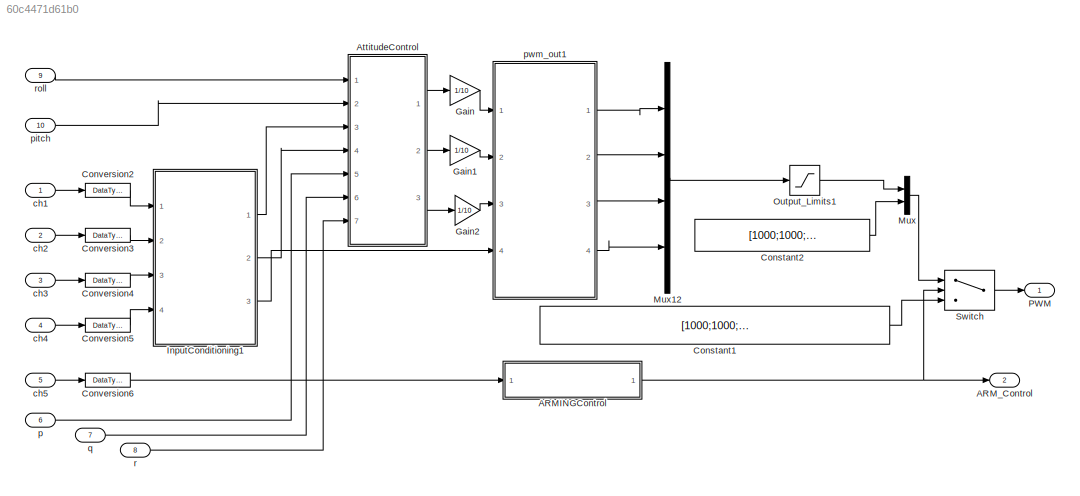
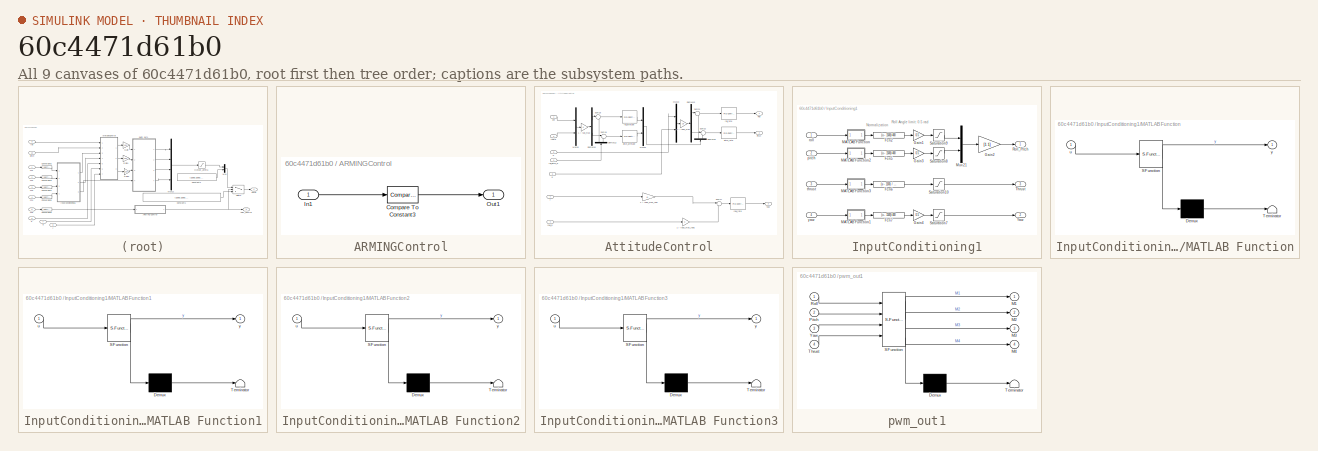
[diagram: thumbnail index - all 9 canvases of the model, root first then tree order]
MODEL slx_60c4471d61b0
KIND model
CONFIG AbsTol = auto
CONFIG EnableMultiTasking = off
CONFIG FixedStep = 0.001
CONFIG InitFcn = Init_control
CONFIG MaxStep = auto
CONFIG MinStep = auto
CONFIG RelTol = 1e-3
CONFIG SampleTimeConstraint = Unconstrained
CONFIG Solver = ode4
CONFIG SolverName = ode4
CONFIG StartTime = 0.0
CONFIG StopTime = 20
BLOCK [SubSystem] ARMINGControl
  Ports = [1, 1]
  RequestExecContextInheritance = off
  Variant = off
BLOCK [Reference] ARMINGControl/Compare To Constant3  REF=simulink/Logic and Bit
Operations/Compare
To Constant
  Ports = [1, 1]
  SourceBlock = simulink/Logic and Bit\nOperations/Compare\nTo Constant
  SourceProductBaseCode = SL
  SourceProductName = Simulink
  SourceType = Compare To Constant
BLOCK [Inport] ARMINGControl/In1
  IconDisplay = Port number
BLOCK [Outport] ARMINGControl/Out1
  IconDisplay = Port number
BLOCK [Outport] ARM_Control
  IconDisplay = Port number
  Port = 2
  PortDimensions = 1
  SamplingMode = Sample based
  SignalType = real
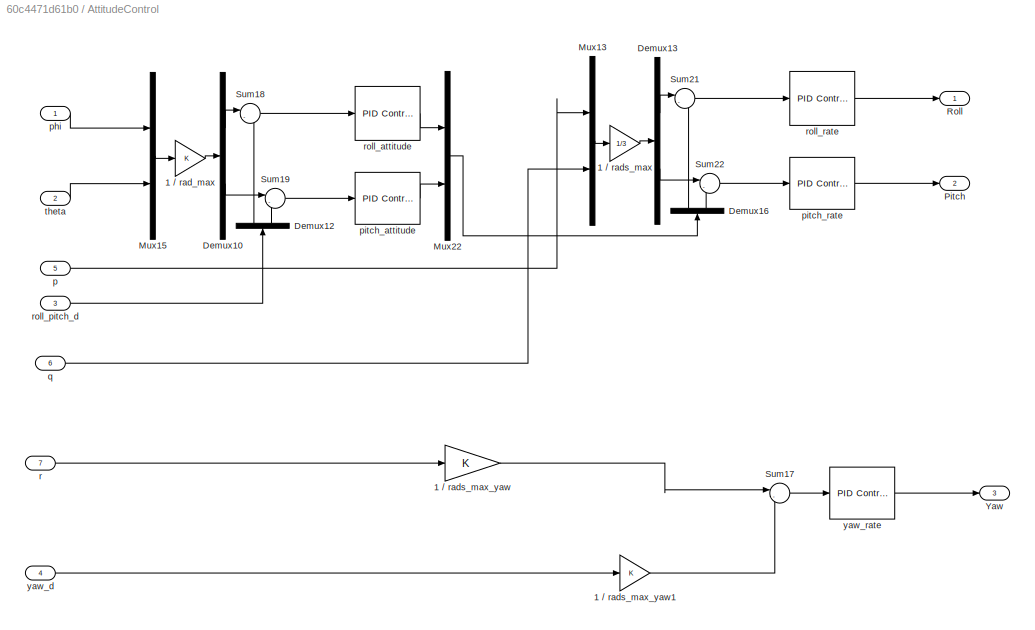
BLOCK [SubSystem] AttitudeControl
  Ports = [7, 3]
  RequestExecContextInheritance = off
  Variant = off
BLOCK [Gain] AttitudeControl/1 // rad_max
  OutDataTypeStr = Inherit: Inherit via internal rule
  ParamDataTypeStr = Inherit: Inherit via internal rule
  SaturateOnIntegerOverflow = off
BLOCK [Gain] AttitudeControl/1 // rads_max
  Gain = 1/3
  OutDataTypeStr = Inherit: Inherit via internal rule
  ParamDataTypeStr = Inherit: Inherit via internal rule
  SaturateOnIntegerOverflow = off
BLOCK [Gain] AttitudeControl/1 // rads_max_yaw
  OutDataTypeStr = Inherit: Inherit via internal rule
  ParamDataTypeStr = Inherit: Inherit via internal rule
  SaturateOnIntegerOverflow = off
BLOCK [Gain] AttitudeControl/1 // rads_max_yaw1
  OutDataTypeStr = Inherit: Inherit via internal rule
  ParamDataTypeStr = Inherit: Inherit via internal rule
  SaturateOnIntegerOverflow = off
BLOCK [Demux] AttitudeControl/Demux10
  DisplayOption = bar
  Outputs = 2
  Ports = [1, 2]
BLOCK [Demux] AttitudeControl/Demux12
  DisplayOption = bar
  Outputs = 2
  Ports = [1, 2]
BLOCK [Demux] AttitudeControl/Demux13
  DisplayOption = bar
  Outputs = 2
  Ports = [1, 2]
BLOCK [Demux] AttitudeControl/Demux16
  DisplayOption = bar
  Outputs = 2
  Ports = [1, 2]
BLOCK [Mux] AttitudeControl/Mux13
  DisplayOption = bar
  Inputs = 2
  Ports = [2, 1]
BLOCK [Mux] AttitudeControl/Mux15
  DisplayOption = bar
  Inputs = 2
  Ports = [2, 1]
BLOCK [Mux] AttitudeControl/Mux22
  DisplayOption = bar
  Inputs = 2
  Ports = [2, 1]
BLOCK [Outport] AttitudeControl/Pitch
  IconDisplay = Port number
  Port = 2
BLOCK [Outport] AttitudeControl/Roll
  IconDisplay = Port number
BLOCK [Sum] AttitudeControl/Sum17
  IconShape = round
  InputSameDT = off
  Inputs = |-+
  OutDataTypeStr = Inherit: Inherit via internal rule
  Ports = [2, 1]
  SaturateOnIntegerOverflow = off
BLOCK [Sum] AttitudeControl/Sum18
  IconShape = round
  InputSameDT = off
  Inputs = |-+
  OutDataTypeStr = Inherit: Inherit via internal rule
  Ports = [2, 1]
  SaturateOnIntegerOverflow = off
BLOCK [Sum] AttitudeControl/Sum19
  IconShape = round
  InputSameDT = off
  Inputs = |-+
  OutDataTypeStr = Inherit: Inherit via internal rule
  Ports = [2, 1]
  SaturateOnIntegerOverflow = off
BLOCK [Sum] AttitudeControl/Sum21
  IconShape = round
  InputSameDT = off
  Inputs = |-+
  OutDataTypeStr = Inherit: Inherit via internal rule
  Ports = [2, 1]
  SaturateOnIntegerOverflow = off
BLOCK [Sum] AttitudeControl/Sum22
  IconShape = round
  InputSameDT = off
  Inputs = |-+
  OutDataTypeStr = Inherit: Inherit via internal rule
  Ports = [2, 1]
  SaturateOnIntegerOverflow = off
BLOCK [Outport] AttitudeControl/Yaw
  IconDisplay = Port number
  Port = 3
BLOCK [Inport] AttitudeControl/p
  IconDisplay = Port number
  Port = 5
BLOCK [Inport] AttitudeControl/phi
  IconDisplay = Port number
BLOCK [Reference] AttitudeControl/pitch_attitude  REF=simulink/Continuous/PID Controller
  Ports = [1, 1]
  SourceBlock = simulink/Continuous/PID Controller
  SourceProductBaseCode = SL
  SourceProductName = Simulink
  SourceType = PID 1dof
BLOCK [Reference] AttitudeControl/pitch_rate  REF=simulink/Continuous/PID Controller
  Ports = [1, 1]
  SourceBlock = simulink/Continuous/PID Controller
  SourceProductBaseCode = SL
  SourceProductName = Simulink
  SourceType = PID 1dof
BLOCK [Inport] AttitudeControl/q
  IconDisplay = Port number
  Port = 6
BLOCK [Inport] AttitudeControl/r
  IconDisplay = Port number
  Port = 7
BLOCK [Reference] AttitudeControl/roll_attitude  REF=simulink/Continuous/PID Controller
  Ports = [1, 1]
  SourceBlock = simulink/Continuous/PID Controller
  SourceProductBaseCode = SL
  SourceProductName = Simulink
  SourceType = PID 1dof
BLOCK [Inport] AttitudeControl/roll_pitch_d
  IconDisplay = Port number
  Port = 3
BLOCK [Reference] AttitudeControl/roll_rate  REF=simulink/Continuous/PID Controller
  Ports = [1, 1]
  SourceBlock = simulink/Continuous/PID Controller
  SourceProductBaseCode = SL
  SourceProductName = Simulink
  SourceType = PID 1dof
BLOCK [Inport] AttitudeControl/theta
  IconDisplay = Port number
  Port = 2
BLOCK [Inport] AttitudeControl/yaw_d
  IconDisplay = Port number
  Port = 4
BLOCK [Reference] AttitudeControl/yaw_rate  REF=simulink/Continuous/PID Controller
  Ports = [1, 1]
  SourceBlock = simulink/Continuous/PID Controller
  SourceProductBaseCode = SL
  SourceProductName = Simulink
  SourceType = PID 1dof
BLOCK [Constant] Constant1
  Value = [1000;1000;1000;1000;1000;1000;1000;1000]
BLOCK [Constant] Constant2
  Value = [1000;1000;1000;1000]
BLOCK [DataTypeConversion] Conversion2
  OutDataTypeStr = double
  RndMeth = Floor
  SaturateOnIntegerOverflow = off
BLOCK [DataTypeConversion] Conversion3
  OutDataTypeStr = double
  RndMeth = Floor
  SaturateOnIntegerOverflow = off
BLOCK [DataTypeConversion] Conversion4
  OutDataTypeStr = double
  RndMeth = Floor
  SaturateOnIntegerOverflow = off
BLOCK [DataTypeConversion] Conversion5
  OutDataTypeStr = double
  RndMeth = Floor
  SaturateOnIntegerOverflow = off
BLOCK [DataTypeConversion] Conversion6
  OutDataTypeStr = double
  RndMeth = Floor
  SaturateOnIntegerOverflow = off
BLOCK [Gain] Gain
  Gain = 1/10
  OutDataTypeStr = Inherit: Inherit via internal rule
  ParamDataTypeStr = Inherit: Inherit via internal rule
  SaturateOnIntegerOverflow = off
BLOCK [Gain] Gain1
  Gain = 1/10
  OutDataTypeStr = Inherit: Inherit via internal rule
  ParamDataTypeStr = Inherit: Inherit via internal rule
  SaturateOnIntegerOverflow = off
BLOCK [Gain] Gain2
  Gain = 1/10
  OutDataTypeStr = Inherit: Inherit via internal rule
  ParamDataTypeStr = Inherit: Inherit via internal rule
  SaturateOnIntegerOverflow = off
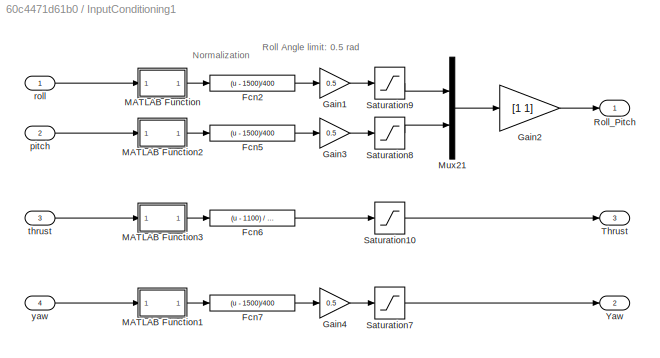
BLOCK [SubSystem] InputConditioning1
  Ports = [4, 3]
  RequestExecContextInheritance = off
  Variant = off
BLOCK [Fcn] InputConditioning1/Fcn2
  Expr = (u - 1500)/400
BLOCK [Fcn] InputConditioning1/Fcn5
  Expr = (u - 1500)/400
BLOCK [Fcn] InputConditioning1/Fcn6
  Expr = (u - 1100) / 800
BLOCK [Fcn] InputConditioning1/Fcn7
  Expr = (u - 1500)/400
BLOCK [Gain] InputConditioning1/Gain1
  Gain = 0.5
  OutDataTypeStr = Inherit: Inherit via internal rule
  ParamDataTypeStr = Inherit: Inherit via internal rule
  SaturateOnIntegerOverflow = off
BLOCK [Gain] InputConditioning1/Gain2
  Gain = [1 1]
  OutDataTypeStr = Inherit: Inherit via back propagation
  ParamDataTypeStr = Inherit: Inherit via internal rule
  SaturateOnIntegerOverflow = off
BLOCK [Gain] InputConditioning1/Gain3
  Gain = 0.5
  OutDataTypeStr = Inherit: Inherit via internal rule
  ParamDataTypeStr = Inherit: Inherit via internal rule
  SaturateOnIntegerOverflow = off
BLOCK [Gain] InputConditioning1/Gain4
  Gain = 0.5
  OutDataTypeStr = Inherit: Inherit via internal rule
  ParamDataTypeStr = Inherit: Inherit via internal rule
  SaturateOnIntegerOverflow = off
BLOCK [SubSystem] InputConditioning1/MATLAB Function
  ErrorFcn = Stateflow.Translate.translate
  PermitHierarchicalResolution = ExplicitOnly
  Ports = [1, 1]
  RequestExecContextInheritance = off
  SFBlockType = MATLAB Function
  TreatAsAtomicUnit = on
  Variant = off
BLOCK [Demux] InputConditioning1/MATLAB Function/ Demux 
  Outputs = 1
  Ports = [1, 1]
BLOCK [S-Function] InputConditioning1/MATLAB Function/ SFunction 
  EnableBusSupport = on
  FunctionName = sf_sfun
  PortCounts = [1 2]
  Ports = [1, 2]
  SFcnIsStateOwnerBlock = off
  SFunctionDeploymentMode = off
  Tag = Stateflow S-Function Exp1_AttitudeController 2
BLOCK [Terminator] InputConditioning1/MATLAB Function/ Terminator 
BLOCK [Inport] InputConditioning1/MATLAB Function/u
  IconDisplay = Port number
BLOCK [Outport] InputConditioning1/MATLAB Function/y
  IconDisplay = Port number
BLOCK [SubSystem] InputConditioning1/MATLAB Function1
  ErrorFcn = Stateflow.Translate.translate
  PermitHierarchicalResolution = ExplicitOnly
  Ports = [1, 1]
  RequestExecContextInheritance = off
  SFBlockType = MATLAB Function
  TreatAsAtomicUnit = on
  Variant = off
BLOCK [Demux] InputConditioning1/MATLAB Function1/ Demux 
  Outputs = 1
  Ports = [1, 1]
BLOCK [S-Function] InputConditioning1/MATLAB Function1/ SFunction 
  EnableBusSupport = on
  FunctionName = sf_sfun
  PortCounts = [1 2]
  Ports = [1, 2]
  SFcnIsStateOwnerBlock = off
  SFunctionDeploymentMode = off
  Tag = Stateflow S-Function Exp1_AttitudeController 3
BLOCK [Terminator] InputConditioning1/MATLAB Function1/ Terminator 
BLOCK [Inport] InputConditioning1/MATLAB Function1/u
  IconDisplay = Port number
BLOCK [Outport] InputConditioning1/MATLAB Function1/y
  IconDisplay = Port number
BLOCK [SubSystem] InputConditioning1/MATLAB Function2
  ErrorFcn = Stateflow.Translate.translate
  PermitHierarchicalResolution = ExplicitOnly
  Ports = [1, 1]
  RequestExecContextInheritance = off
  SFBlockType = MATLAB Function
  TreatAsAtomicUnit = on
  Variant = off
BLOCK [Demux] InputConditioning1/MATLAB Function2/ Demux 
  Outputs = 1
  Ports = [1, 1]
BLOCK [S-Function] InputConditioning1/MATLAB Function2/ SFunction 
  EnableBusSupport = on
  FunctionName = sf_sfun
  PortCounts = [1 2]
  Ports = [1, 2]
  SFcnIsStateOwnerBlock = off
  SFunctionDeploymentMode = off
  Tag = Stateflow S-Function Exp1_AttitudeController 5
BLOCK [Terminator] InputConditioning1/MATLAB Function2/ Terminator 
BLOCK [Inport] InputConditioning1/MATLAB Function2/u
  IconDisplay = Port number
BLOCK [Outport] InputConditioning1/MATLAB Function2/y
  IconDisplay = Port number
BLOCK [SubSystem] InputConditioning1/MATLAB Function3
  ErrorFcn = Stateflow.Translate.translate
  PermitHierarchicalResolution = ExplicitOnly
  Ports = [1, 1]
  RequestExecContextInheritance = off
  SFBlockType = MATLAB Function
  TreatAsAtomicUnit = on
  Variant = off
BLOCK [Demux] InputConditioning1/MATLAB Function3/ Demux 
  Outputs = 1
  Ports = [1, 1]
BLOCK [S-Function] InputConditioning1/MATLAB Function3/ SFunction 
  EnableBusSupport = on
  FunctionName = sf_sfun
  PortCounts = [1 2]
  Ports = [1, 2]
  SFcnIsStateOwnerBlock = off
  SFunctionDeploymentMode = off
  Tag = Stateflow S-Function Exp1_AttitudeController 7
BLOCK [Terminator] InputConditioning1/MATLAB Function3/ Terminator 
BLOCK [Inport] InputConditioning1/MATLAB Function3/u
  IconDisplay = Port number
BLOCK [Outport] InputConditioning1/MATLAB Function3/y
  IconDisplay = Port number
BLOCK [Mux] InputConditioning1/Mux21
  DisplayOption = bar
  Inputs = 2
  Ports = [2, 1]
BLOCK [Outport] InputConditioning1/Roll_Pitch
  IconDisplay = Port number
BLOCK [Saturate] InputConditioning1/Saturation10
  InputPortMap = u0
  LowerLimit = 0
  Ports = [1, 1]
  UpperLimit = 1
BLOCK [Saturate] InputConditioning1/Saturation7
  InputPortMap = u0
  LowerLimit = -1
  Ports = [1, 1]
  UpperLimit = 1
BLOCK [Saturate] InputConditioning1/Saturation8
  InputPortMap = u0
  LowerLimit = -1
  Ports = [1, 1]
  UpperLimit = 1
BLOCK [Saturate] InputConditioning1/Saturation9
  InputPortMap = u0
  LowerLimit = -1
  Ports = [1, 1]
  UpperLimit = 1
BLOCK [Outport] InputConditioning1/Thrust
  IconDisplay = Port number
  Port = 3
BLOCK [Outport] InputConditioning1/Yaw
  IconDisplay = Port number
  Port = 2
BLOCK [Inport] InputConditioning1/pitch
  IconDisplay = Port number
  Port = 2
BLOCK [Inport] InputConditioning1/roll
  IconDisplay = Port number
BLOCK [Inport] InputConditioning1/thrust
  IconDisplay = Port number
  Port = 3
BLOCK [Inport] InputConditioning1/yaw
  IconDisplay = Port number
  Port = 4
BLOCK [Mux] Mux
  DisplayOption = bar
  Inputs = 2
  Ports = [2, 1]
BLOCK [Mux] Mux12
  DisplayOption = bar
  Ports = [4, 1]
BLOCK [Saturate] Output_Limits1
  InputPortMap = u0
  LowerLimit = 1000
  Ports = [1, 1]
  UpperLimit = 2000
BLOCK [Outport] PWM
  IconDisplay = Port number
  PortDimensions = 8
  SamplingMode = Sample based
  SignalType = real
BLOCK [Switch] Switch
  Criteria = u2 > Threshold
  InputSameDT = off
  SaturateOnIntegerOverflow = off
  Threshold = 0.5
BLOCK [Inport] ch1
  IconDisplay = Port number
  PortDimensions = 1
  SamplingMode = Sample based
  SignalType = real
BLOCK [Inport] ch2
  IconDisplay = Port number
  Port = 2
  PortDimensions = 1
  SamplingMode = Sample based
  SignalType = real
BLOCK [Inport] ch3
  IconDisplay = Port number
  Port = 3
  PortDimensions = 1
  SamplingMode = Sample based
  SignalType = real
BLOCK [Inport] ch4
  IconDisplay = Port number
  Port = 4
  PortDimensions = 1
  SamplingMode = Sample based
  SignalType = real
BLOCK [Inport] ch5
  IconDisplay = Port number
  Interpolate = off
  Port = 5
  PortDimensions = 1
  SamplingMode = Sample based
  SignalType = real
BLOCK [Inport] p
  IconDisplay = Port number
  Port = 6
  PortDimensions = 1
  SamplingMode = Sample based
  SignalType = real
BLOCK [Inport] pitch
  IconDisplay = Port number
  Port = 10
  PortDimensions = 1
  SamplingMode = Sample based
  SignalType = real
BLOCK [SubSystem] pwm_out1
  ErrorFcn = Stateflow.Translate.translate
  PermitHierarchicalResolution = ExplicitOnly
  Ports = [4, 4]
  RequestExecContextInheritance = off
  SFBlockType = MATLAB Function
  SystemSampleTime = 0.004
  TreatAsAtomicUnit = on
  Variant = off
BLOCK [Demux] pwm_out1/ Demux 
  Outputs = 1
  Ports = [1, 1]
BLOCK [S-Function] pwm_out1/ SFunction 
  EnableBusSupport = off
  FunctionName = sf_sfun
  PortCounts = [4 5]
  Ports = [4, 5]
  SFcnIsStateOwnerBlock = off
  SFunctionDeploymentMode = off
  Tag = Stateflow S-Function Exp1_AttitudeController 8
BLOCK [Terminator] pwm_out1/ Terminator 
BLOCK [Outport] pwm_out1/M1
  IconDisplay = Port number
BLOCK [Outport] pwm_out1/M2
  IconDisplay = Port number
  Port = 2
BLOCK [Outport] pwm_out1/M3
  IconDisplay = Port number
  Port = 3
BLOCK [Outport] pwm_out1/M4
  IconDisplay = Port number
  Port = 4
BLOCK [Inport] pwm_out1/Pitch
  IconDisplay = Port number
  Port = 2
BLOCK [Inport] pwm_out1/Roll
  IconDisplay = Port number
BLOCK [Inport] pwm_out1/Thrust
  IconDisplay = Port number
  Port = 4
BLOCK [Inport] pwm_out1/Yaw
  IconDisplay = Port number
  Port = 3
BLOCK [Inport] q
  IconDisplay = Port number
  Port = 7
  PortDimensions = 1
  SamplingMode = Sample based
  SignalType = real
BLOCK [Inport] r
  IconDisplay = Port number
  Port = 8
  PortDimensions = 1
  SamplingMode = Sample based
  SignalType = real
BLOCK [Inport] roll
  IconDisplay = Port number
  Port = 9
  PortDimensions = 1
  SamplingMode = Sample based
  SignalType = real
ANNOTATION InputConditioning1: Normalization
ANNOTATION InputConditioning1: Roll Angle limit: 0.5 rad
LINE ARMINGControl/Compare To Constant3:1 -> ARMINGControl/Out1:1
LINE ARMINGControl/In1:1 -> ARMINGControl/Compare To Constant3:1
NET ARMINGControl:1 -> ARM_Control:1, Switch:2
LINE AttitudeControl/1 // rad_max:1 -> AttitudeControl/Demux10:1
LINE AttitudeControl/1 // rads_max:1 -> AttitudeControl/Demux13:1
LINE AttitudeControl/1 // rads_max_yaw1:1 -> AttitudeControl/Sum17:2
LINE AttitudeControl/1 // rads_max_yaw:1 -> AttitudeControl/Sum17:1
LINE AttitudeControl/Demux10:1 -> AttitudeControl/Sum18:1
LINE AttitudeControl/Demux10:2 -> AttitudeControl/Sum19:1
LINE AttitudeControl/Demux12:1 -> AttitudeControl/Sum18:2
LINE AttitudeControl/Demux12:2 -> AttitudeControl/Sum19:2
LINE AttitudeControl/Demux13:1 -> AttitudeControl/Sum21:1
LINE AttitudeControl/Demux13:2 -> AttitudeControl/Sum22:1
LINE AttitudeControl/Demux16:1 -> AttitudeControl/Sum21:2
LINE AttitudeControl/Demux16:2 -> AttitudeControl/Sum22:2
LINE AttitudeControl/Mux13:1 -> AttitudeControl/1 // rads_max:1
LINE AttitudeControl/Mux15:1 -> AttitudeControl/1 // rad_max:1
LINE AttitudeControl/Mux22:1 -> AttitudeControl/Demux16:1
LINE AttitudeControl/Sum17:1 -> AttitudeControl/yaw_rate:1
LINE AttitudeControl/Sum18:1 -> AttitudeControl/roll_attitude:1
LINE AttitudeControl/Sum19:1 -> AttitudeControl/pitch_attitude:1
LINE AttitudeControl/Sum21:1 -> AttitudeControl/roll_rate:1
LINE AttitudeControl/Sum22:1 -> AttitudeControl/pitch_rate:1
LINE AttitudeControl/p:1 -> AttitudeControl/Mux13:1
LINE AttitudeControl/phi:1 -> AttitudeControl/Mux15:1
LINE AttitudeControl/pitch_attitude:1 -> AttitudeControl/Mux22:2
LINE AttitudeControl/pitch_rate:1 -> AttitudeControl/Pitch:1
LINE AttitudeControl/q:1 -> AttitudeControl/Mux13:2
LINE AttitudeControl/r:1 -> AttitudeControl/1 // rads_max_yaw:1
LINE AttitudeControl/roll_attitude:1 -> AttitudeControl/Mux22:1
LINE AttitudeControl/roll_pitch_d:1 -> AttitudeControl/Demux12:1
LINE AttitudeControl/roll_rate:1 -> AttitudeControl/Roll:1
LINE AttitudeControl/theta:1 -> AttitudeControl/Mux15:2
LINE AttitudeControl/yaw_d:1 -> AttitudeControl/1 // rads_max_yaw1:1
LINE AttitudeControl/yaw_rate:1 -> AttitudeControl/Yaw:1
LINE AttitudeControl:1 -> Gain:1
LINE AttitudeControl:2 -> Gain1:1
LINE AttitudeControl:3 -> Gain2:1
LINE Constant1:1 -> Switch:3
LINE Constant2:1 -> Mux:2
LINE Conversion2:1 -> InputConditioning1:1
LINE Conversion3:1 -> InputConditioning1:2
LINE Conversion4:1 -> InputConditioning1:3
LINE Conversion5:1 -> InputConditioning1:4
LINE Conversion6:1 -> ARMINGControl:1
LINE Gain1:1 -> pwm_out1:2
LINE Gain2:1 -> pwm_out1:3
LINE Gain:1 -> pwm_out1:1
LINE InputConditioning1/Fcn2:1 -> InputConditioning1/Gain1:1
LINE InputConditioning1/Fcn5:1 -> InputConditioning1/Gain3:1
LINE InputConditioning1/Fcn6:1 -> InputConditioning1/Saturation10:1
LINE InputConditioning1/Fcn7:1 -> InputConditioning1/Gain4:1
LINE InputConditioning1/Gain1:1 -> InputConditioning1/Saturation9:1
LINE InputConditioning1/Gain2:1 -> InputConditioning1/Roll_Pitch:1
LINE InputConditioning1/Gain3:1 -> InputConditioning1/Saturation8:1
LINE InputConditioning1/Gain4:1 -> InputConditioning1/Saturation7:1
LINE InputConditioning1/MATLAB Function1:1 -> InputConditioning1/Fcn7:1
LINE InputConditioning1/MATLAB Function2:1 -> InputConditioning1/Fcn5:1
LINE InputConditioning1/MATLAB Function3:1 -> InputConditioning1/Fcn6:1
LINE InputConditioning1/MATLAB Function:1 -> InputConditioning1/Fcn2:1
LINE InputConditioning1/Mux21:1 -> InputConditioning1/Gain2:1
LINE InputConditioning1/Saturation10:1 -> InputConditioning1/Thrust:1
LINE InputConditioning1/Saturation7:1 -> InputConditioning1/Yaw:1
LINE InputConditioning1/Saturation8:1 -> InputConditioning1/Mux21:2
LINE InputConditioning1/Saturation9:1 -> InputConditioning1/Mux21:1
LINE InputConditioning1/pitch:1 -> InputConditioning1/MATLAB Function2:1
LINE InputConditioning1/roll:1 -> InputConditioning1/MATLAB Function:1
LINE InputConditioning1/thrust:1 -> InputConditioning1/MATLAB Function3:1
LINE InputConditioning1/yaw:1 -> InputConditioning1/MATLAB Function1:1
LINE InputConditioning1:1 -> AttitudeControl:3
LINE InputConditioning1:2 -> AttitudeControl:4
LINE InputConditioning1:3 -> pwm_out1:4
LINE Mux12:1 -> Output_Limits1:1
LINE Mux:1 -> Switch:1
LINE Output_Limits1:1 -> Mux:1
LINE Switch:1 -> PWM:1
LINE ch1:1 -> Conversion2:1
LINE ch2:1 -> Conversion3:1
LINE ch3:1 -> Conversion4:1
LINE ch4:1 -> Conversion5:1
LINE ch5:1 -> Conversion6:1
LINE p:1 -> AttitudeControl:5
LINE pitch:1 -> AttitudeControl:2
LINE pwm_out1:1 -> Mux12:1
LINE pwm_out1:2 -> Mux12:2
LINE pwm_out1:3 -> Mux12:3
LINE pwm_out1:4 -> Mux12:4
LINE q:1 -> AttitudeControl:6
LINE r:1 -> AttitudeControl:7
LINE roll:1 -> AttitudeControl:1
note: NET lines group one-source signal fan-out (src -> all destinations, sorted); 1:1 wires keep LINE
CHART InputConditioning1/MATLAB Function states=1 transitions=1
  STATE_LABEL 'eML_blk_kernel()'
  STATE_LABEL 'SCRIPT:\nfunction y = fcn(u)\n%将遥控输入的范围控制在1100~1900，同时设置一个死区，死区大小为±deadZone\nRCMin = 1100;\nRCMax = 1900;\ndeadZoneRate = 0.05;\ndeadZone = deadZoneRate*(RCMax-RCMin);\n%限幅\nif(u < RCMin)\n    u = RCMin;\nelseif(u > RCMax)\n    u = RCMax;\nend\n%死区\n if(u > 1500+deadZone)\n    y = u;\n elseif(u < 1500-deadZone)\n     y = u;\n else\n     y = 1500;\n end\n     \n end\n \n'
CHART InputConditioning1/MATLAB Function1 states=1 transitions=1
  STATE_LABEL 'eML_blk_kernel()'
  STATE_LABEL 'SCRIPT:\nfunction y = fcn(u)\n%将遥控输入的范围控制在1100~1900，同时设置一个死区，死区大小为±deadZone\nRCMin = 1100;\nRCMax = 1900;\ndeadZoneRate = 0.05;\ndeadZone = deadZoneRate*(RCMax-RCMin);\n%限幅\nif(u < RCMin)\n    u = RCMin;\nelseif(u > RCMax)\n    u = RCMax;\nend\n%死区\n if(u > 1500+deadZone)\n    y = u;\n elseif(u < 1500-deadZone)\n     y = u;\n else\n     y = 1500;\n end\n     \n end\n \n\n \n'  <repeated x3 — deduplicated; at blocks: MATLAB Function1, MATLAB Function2, MATLAB Function3>
CHART InputConditioning1/MATLAB Function2 states=1 transitions=1
  STATE_LABEL 'eML_blk_kernel()'
CHART InputConditioning1/MATLAB Function3 states=1 transitions=1
  STATE_LABEL 'eML_blk_kernel()'
CHART pwm_out1 states=1 transitions=1
  STATE_LABEL 'eML_blk_kernel()'
  STATE_LABEL 'SCRIPT:\nfunction [M1, M2, M3, M4] = motor_mixer(Roll, Pitch, Yaw, Thrust)\n\nidle_PWM = 1000;\n\n% Quad XROLL （根据QP里面的叉字形结构的文字）\n% M1 = ((Pitch+ Yaw)+Thrust-Roll) * 1000 + idle_PWM;\n %M2 = ((Pitch - Yaw)+Thrust+Roll) * 1000 + idle_PWM;\n %M3 = ((Roll +Yaw) + Thrust-Pitch) * 1000 + idle_PWM;\n %M4 = ((-Roll - Pitch-Yaw) + Thrust) * 1000 + idle_PWM;\n% M5 = 1000;\n% M6 = 1000;\n% M7 = 1000;\n% M8 = 1000;\n%qp上实...<+2078ch>'
